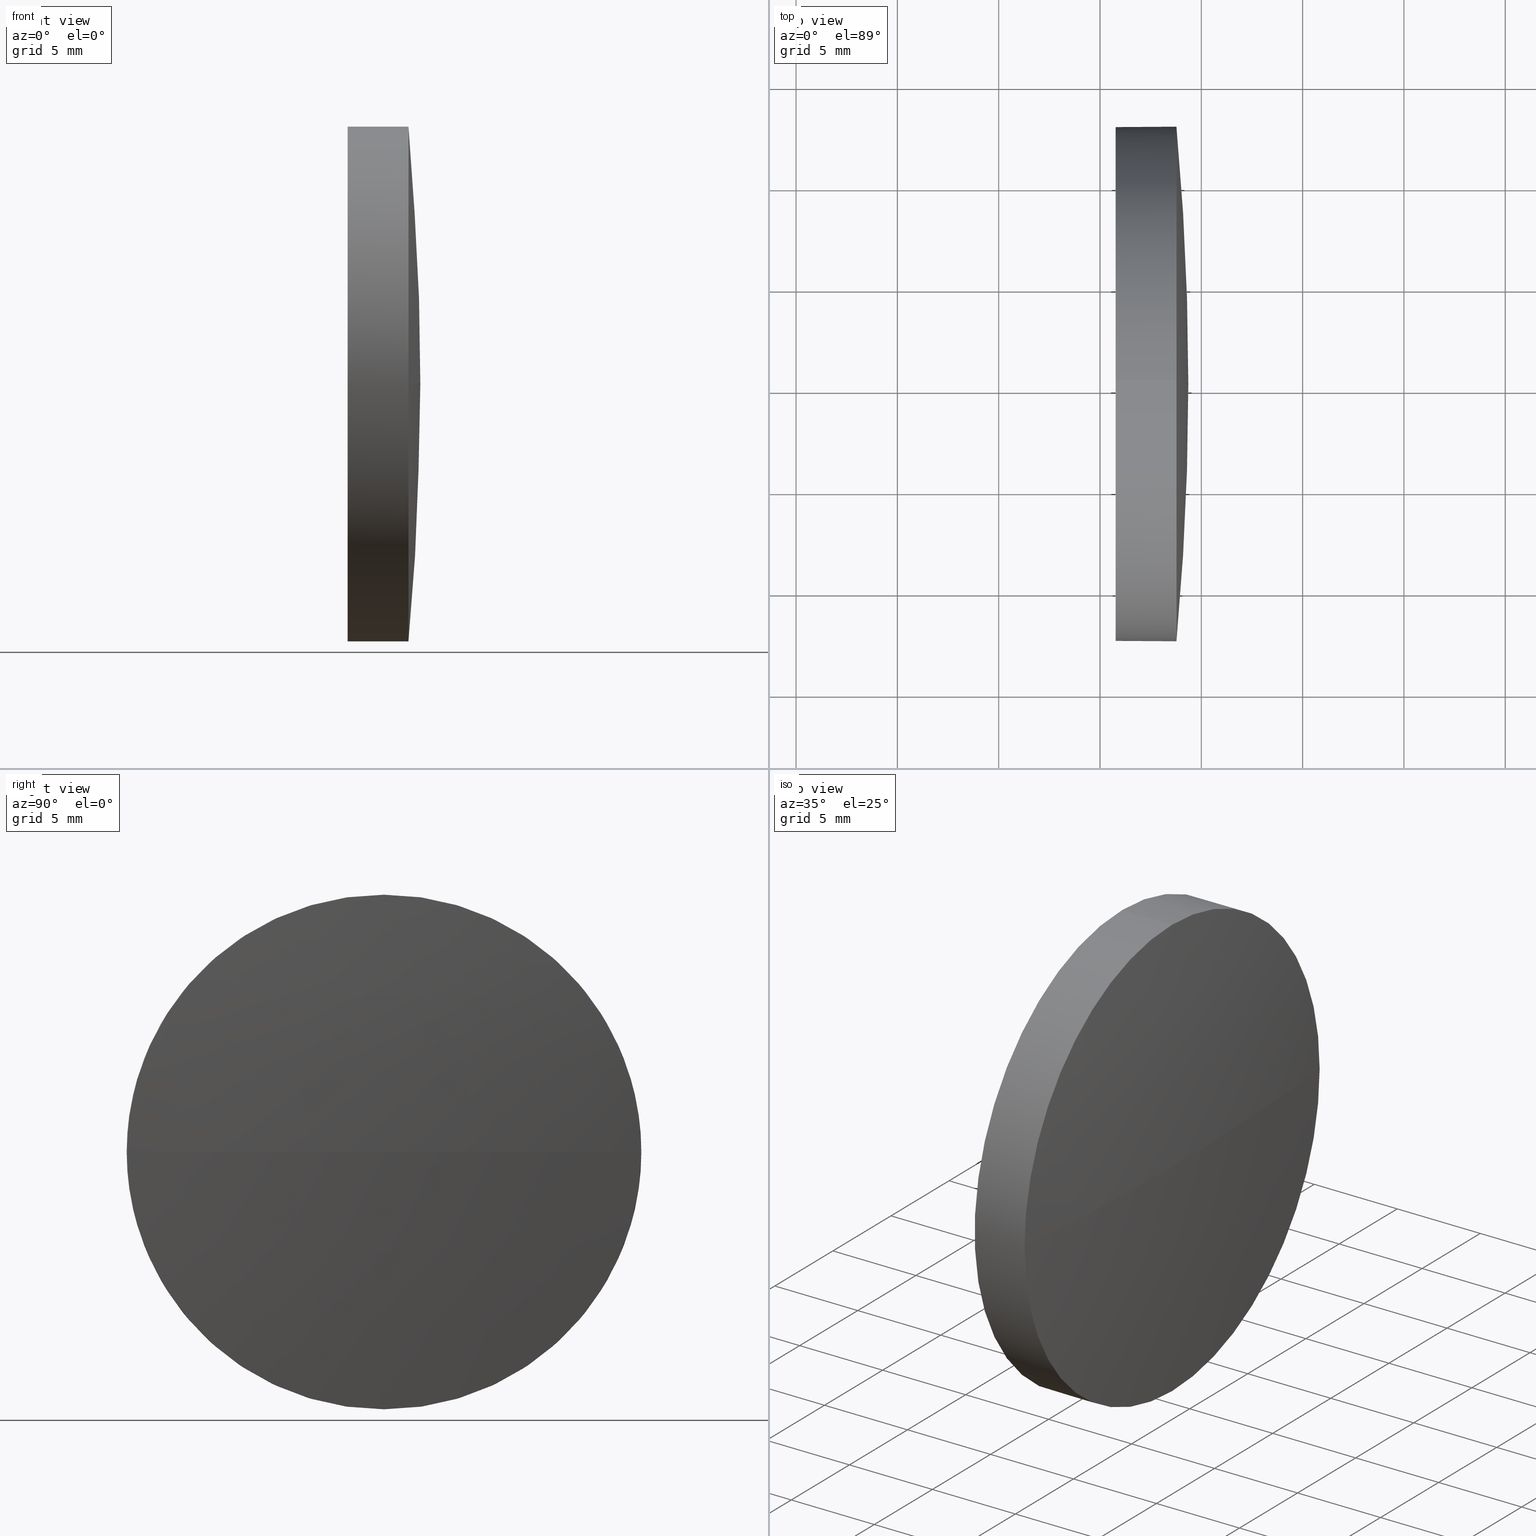
[diagram: canonical four-view strip — front | top / right | iso, engineering-drawing reading convention]
A machine part, canonical four-view strip (front | top / right | iso — engineering-drawing reading convention). The complete STEP part file that produces these views, byte-faithful:
ISO-10303-21;
HEADER;
FILE_DESCRIPTION (( 'STEP AP214' ),
    '1' );
FILE_NAME ('400023.STEP',
    '2019-08-21T06:24:18',
    ( '' ),
    ( '' ),
    'SwSTEP 2.0',
    'SolidWorks 2016',
    '' );
FILE_SCHEMA (( 'AUTOMOTIVE_DESIGN' ));
ENDSEC;

DATA;
#1 = DIRECTION ( 'NONE',  ( 0.0000000000000000000, 0.0000000000000000000, -1.000000000000000000 ) ) ;
#2 = ORIENTED_EDGE ( 'NONE', *, *, #130, .F. ) ;
#3 = EDGE_LOOP ( 'NONE', ( #129, #89 ) ) ;
#4 = AXIS2_PLACEMENT_3D ( 'NONE', #93, #135, #31 ) ;
#5 = LINE ( 'NONE', #76, #54 ) ;
#6 = FACE_OUTER_BOUND ( 'NONE', #22, .T. ) ;
#7 = EDGE_CURVE ( 'NONE', #142, #44, #5, .T. ) ;
#8 = ORIENTED_EDGE ( 'NONE', *, *, #143, .F. ) ;
#9 = ORIENTED_EDGE ( 'NONE', *, *, #24, .T. ) ;
#10 = PRESENTATION_LAYER_ASSIGNMENT (  '', '', ( #139 ) ) ;
#11 =( NAMED_UNIT ( * ) SI_UNIT ( $, .STERADIAN. ) SOLID_ANGLE_UNIT ( ) );
#12 = ORIENTED_EDGE ( 'NONE', *, *, #24, .F. ) ;
#13 = CARTESIAN_POINT ( 'NONE',  ( 118.7740777732635700, 65.23355492641219700, 0.0000000000000000000 ) ) ;
#14 = FILL_AREA_STYLE_COLOUR ( '', #154 ) ;
#15 = DIRECTION ( 'NONE',  ( 0.0000000000000000000, -1.000000000000000000, 0.0000000000000000000 ) ) ;
#16 = CIRCLE ( 'NONE', #138, 12.70000000000000300 ) ;
#17 = PRODUCT_CONTEXT ( 'NONE', #95, 'mechanical' ) ;
#18 = AXIS2_PLACEMENT_3D ( 'NONE', #151, #109, #78 ) ;
#19 =( NAMED_UNIT ( * ) SI_UNIT ( $, .STERADIAN. ) SOLID_ANGLE_UNIT ( ) );
#20 = VERTEX_POINT ( 'NONE', #163 ) ;
#21 = DIRECTION ( 'NONE',  ( -1.000000000000000000, -0.0000000000000000000, -0.0000000000000000000 ) ) ;
#22 = EDGE_LOOP ( 'NONE', ( #8, #73, #2, #126 ) ) ;
#23 = DIRECTION ( 'NONE',  ( -1.000000000000000000, -0.0000000000000000000, -0.0000000000000000000 ) ) ;
#24 = EDGE_CURVE ( 'NONE', #80, #119, #141, .T. ) ;
#25 = EDGE_CURVE ( 'NONE', #84, #80, #52, .T. ) ;
#26 = CIRCLE ( 'NONE', #173, 12.70000000000000300 ) ;
#27 = DIRECTION ( 'NONE',  ( -1.000000000000000000, -0.0000000000000000000, -0.0000000000000000000 ) ) ;
#28 = UNCERTAINTY_MEASURE_WITH_UNIT (LENGTH_MEASURE( 1.000000000000000100E-005 ), #59, 'distance_accuracy_value', 'NONE');
#29 = DIRECTION ( 'NONE',  ( 0.0000000000000000000, -1.000000000000000000, -1.224646799147353200E-016 ) ) ;
#30 = CARTESIAN_POINT ( 'NONE',  ( 118.7740777732635700, 65.23355492641219700, 0.0000000000000000000 ) ) ;
#31 = DIRECTION ( 'NONE',  ( 0.0000000000000000000, 0.0000000000000000000, 1.000000000000000000 ) ) ;
#32 = DIRECTION ( 'NONE',  ( -1.000000000000000000, -0.0000000000000000000, -0.0000000000000000000 ) ) ;
#33 =( NAMED_UNIT ( * ) PLANE_ANGLE_UNIT ( ) SI_UNIT ( $, .RADIAN. ) );
#34 = PRESENTATION_STYLE_ASSIGNMENT (( #94 ) ) ;
#35 = ORIENTED_EDGE ( 'NONE', *, *, #63, .F. ) ;
#36 = EDGE_CURVE ( 'NONE', #80, #20, #108, .T. ) ;
#37 = ORIENTED_EDGE ( 'NONE', *, *, #25, .T. ) ;
#38 = DIRECTION ( 'NONE',  ( 0.0000000000000000000, 0.0000000000000000000, 1.000000000000000000 ) ) ;
#39 = CARTESIAN_POINT ( 'NONE',  ( 115.7736064308381300, 65.23355492641219700, 12.70000000000000300 ) ) ;
#40 = CARTESIAN_POINT ( 'NONE',  ( 110.1653732284884500, 65.23355492641219700, -12.70000000000000300 ) ) ;
#41 = EDGE_LOOP ( 'NONE', ( #50, #118, #12, #117 ) ) ;
#42 = DIRECTION ( 'NONE',  ( 0.0000000000000000000, 0.0000000000000000000, 1.000000000000000000 ) ) ;
#43 = FILL_AREA_STYLE ('',( #106 ) ) ;
#44 = VERTEX_POINT ( 'NONE', #39 ) ;
#45 = DIRECTION ( 'NONE',  ( 0.0000000000000000000, 0.0000000000000000000, 1.000000000000000000 ) ) ;
#46 = FILL_AREA_STYLE ('',( #14 ) ) ;
#47 = SPHERICAL_SURFACE ( 'NONE', #158, 138.0229999999999700 ) ;
#48 = PRESENTATION_STYLE_ASSIGNMENT (( #85 ) ) ;
#49 = ORIENTED_EDGE ( 'NONE', *, *, #36, .F. ) ;
#50 = ORIENTED_EDGE ( 'NONE', *, *, #134, .F. ) ;
#51 = MECHANICAL_DESIGN_GEOMETRIC_PRESENTATION_REPRESENTATION (  '', ( #139 ), #177 ) ;
#52 = CIRCLE ( 'NONE', #77, 12.70000000000000300 ) ;
#53 = CARTESIAN_POINT ( 'NONE',  ( 118.7740777732635700, 65.23355492641219700, 0.0000000000000000000 ) ) ;
#54 = VECTOR ( 'NONE', #149, 1000.000000000000000 ) ;
#55 = CIRCLE ( 'NONE', #183, 138.0229999999999700 ) ;
#56 =( NAMED_UNIT ( * ) SI_UNIT ( $, .STERADIAN. ) SOLID_ANGLE_UNIT ( ) );
#57 = DIRECTION ( 'NONE',  ( 0.0000000000000000000, 0.0000000000000000000, 1.000000000000000000 ) ) ;
#58 = CARTESIAN_POINT ( 'NONE',  ( -18.66339356916181200, 65.23355492641235300, 0.0000000000000000000 ) ) ;
#59 =( LENGTH_UNIT ( ) NAMED_UNIT ( * ) SI_UNIT ( .MILLI., .METRE. ) );
#60 = SURFACE_SIDE_STYLE ('',( #86 ) ) ;
#61 = CLOSED_SHELL ( 'NONE', ( #120, #104, #182, #164, #90 ) ) ;
#62 = PRESENTATION_LAYER_ASSIGNMENT (  '', '', ( #116 ) ) ;
#63 = EDGE_CURVE ( 'NONE', #44, #20, #161, .T. ) ;
#64 = SURFACE_STYLE_FILL_AREA ( #43 ) ;
#65 = CARTESIAN_POINT ( 'NONE',  ( 118.7740777732635700, 65.23355492641219700, 0.0000000000000000000 ) ) ;
#66 = ORIENTED_EDGE ( 'NONE', *, *, #130, .T. ) ;
#67 = AXIS2_PLACEMENT_3D ( 'NONE', #186, #155, #140 ) ;
#68 = UNCERTAINTY_MEASURE_WITH_UNIT (LENGTH_MEASURE( 1.000000000000000100E-005 ), #82, 'distance_accuracy_value', 'NONE');
#69 =( GEOMETRIC_REPRESENTATION_CONTEXT ( 3 ) GLOBAL_UNCERTAINTY_ASSIGNED_CONTEXT ( ( #28 ) ) GLOBAL_UNIT_ASSIGNED_CONTEXT ( ( #59, #175, #19 ) ) REPRESENTATION_CONTEXT ( 'NONE', 'WORKASPACE' ) );
#70 = APPLICATION_PROTOCOL_DEFINITION ( 'draft international standard', 'automotive_design', 1998, #115 ) ;
#71 = EDGE_CURVE ( 'NONE', #20, #44, #16, .T. ) ;
#72 = PRODUCT_DEFINITION_CONTEXT ( 'detailed design', #115, 'design' ) ;
#73 = ORIENTED_EDGE ( 'NONE', *, *, #134, .T. ) ;
#74 = DIRECTION ( 'NONE',  ( -1.000000000000000000, -0.0000000000000000000, -0.0000000000000000000 ) ) ;
#75 = CIRCLE ( 'NONE', #166, 12.70000000000000300 ) ;
#76 = CARTESIAN_POINT ( 'NONE',  ( 110.1653732284884500, 65.23355492641219700, 12.70000000000000300 ) ) ;
#77 = AXIS2_PLACEMENT_3D ( 'NONE', #65, #23, #160 ) ;
#78 = DIRECTION ( 'NONE',  ( -1.000000000000000000, 0.0000000000000000000, 0.0000000000000000000 ) ) ;
#79 = DIRECTION ( 'NONE',  ( 0.0000000000000000000, 0.0000000000000000000, 1.000000000000000000 ) ) ;
#80 = VERTEX_POINT ( 'NONE', #145 ) ;
#81 = CARTESIAN_POINT ( 'NONE',  ( -18.66339356916181200, 65.23355492641235300, 0.0000000000000000000 ) ) ;
#82 =( LENGTH_UNIT ( ) NAMED_UNIT ( * ) SI_UNIT ( .MILLI., .METRE. ) );
#83 = DIRECTION ( 'NONE',  ( 0.0000000000000000000, -1.000000000000000000, 0.0000000000000000000 ) ) ;
#84 = VERTEX_POINT ( 'NONE', #148 ) ;
#85 = SURFACE_STYLE_USAGE ( .BOTH. , #60 ) ;
#86 = SURFACE_STYLE_FILL_AREA ( #46 ) ;
#87 = FACE_OUTER_BOUND ( 'NONE', #3, .T. ) ;
#88 = PRODUCT_DEFINITION_FORMATION_WITH_SPECIFIED_SOURCE ( '�κ�', '', #100, .NOT_KNOWN. ) ;
#89 = ORIENTED_EDGE ( 'NONE', *, *, #71, .T. ) ;
#90 = ADVANCED_FACE ( 'NONE', ( #87 ), #105, .F. ) ;
#91 = PRODUCT_RELATED_PRODUCT_CATEGORY ( 'part', '', ( #100 ) ) ;
#92 = SHAPE_DEFINITION_REPRESENTATION ( #184, #128 ) ;
#93 = CARTESIAN_POINT ( 'NONE',  ( 110.1653732284884500, 65.23355492641219700, 0.0000000000000000000 ) ) ;
#94 = SURFACE_STYLE_USAGE ( .BOTH. , #170 ) ;
#95 = APPLICATION_CONTEXT ( 'automotive_design' ) ;
#96 = CARTESIAN_POINT ( 'NONE',  ( 119.3596064308381700, 65.23355492641233900, 0.0000000000000000000 ) ) ;
#97 = AXIS2_PLACEMENT_3D ( 'NONE', #81, #45, #15 ) ;
#98 = FACE_OUTER_BOUND ( 'NONE', #41, .T. ) ;
#99 = EDGE_CURVE ( 'NONE', #119, #142, #75, .T. ) ;
#100 = PRODUCT ( '400023', '400023', '', ( #17 ) ) ;
#101 = ORIENTED_EDGE ( 'NONE', *, *, #7, .F. ) ;
#102 = PRODUCT_DEFINITION ( 'δ֪', '', #88, #72 ) ;
#103 = VECTOR ( 'NONE', #74, 1000.000000000000000 ) ;
#104 = ADVANCED_FACE ( 'NONE', ( #6 ), #47, .T. ) ;
#105 = PLANE ( 'NONE',  #178 ) ;
#106 = FILL_AREA_STYLE_COLOUR ( '', #127 ) ;
#107 = CARTESIAN_POINT ( 'NONE',  ( 118.7740777732635700, 65.23355492641219700, 12.70000000000000300 ) ) ;
#108 = LINE ( 'NONE', #40, #103 ) ;
#109 = DIRECTION ( 'NONE',  ( 0.0000000000000000000, 0.0000000000000000000, -1.000000000000000000 ) ) ;
#110 = DIRECTION ( 'NONE',  ( -1.000000000000000000, -0.0000000000000000000, -0.0000000000000000000 ) ) ;
#111 = DIRECTION ( 'NONE',  ( -1.000000000000000000, -0.0000000000000000000, -0.0000000000000000000 ) ) ;
#112 = AXIS2_PLACEMENT_3D ( 'NONE', #53, #180, #38 ) ;
#113 = EDGE_LOOP ( 'NONE', ( #37, #171, #35, #101, #66 ) ) ;
#114 = SPHERICAL_SURFACE ( 'NONE', #97, 138.0229999999999700 ) ;
#115 = APPLICATION_CONTEXT ( 'automotive_design' ) ;
#116 = STYLED_ITEM ( 'NONE', ( #48 ), #128 ) ;
#117 = ORIENTED_EDGE ( 'NONE', *, *, #25, .F. ) ;
#118 = ORIENTED_EDGE ( 'NONE', *, *, #143, .T. ) ;
#119 = VERTEX_POINT ( 'NONE', #124 ) ;
#120 = ADVANCED_FACE ( 'NONE', ( #157 ), #174, .T. ) ;
#121 = DIRECTION ( 'NONE',  ( 0.0000000000000000000, 0.0000000000000000000, 1.000000000000000000 ) ) ;
#122 = MECHANICAL_DESIGN_GEOMETRIC_PRESENTATION_REPRESENTATION (  '', ( #116 ), #69 ) ;
#123 =( LENGTH_UNIT ( ) NAMED_UNIT ( * ) SI_UNIT ( .MILLI., .METRE. ) );
#124 = CARTESIAN_POINT ( 'NONE',  ( 118.7740777732635700, 52.53355492641231500, 0.0000000000000000000 ) ) ;
#125 = APPLICATION_PROTOCOL_DEFINITION ( 'draft international standard', 'automotive_design', 1998, #95 ) ;
#126 = ORIENTED_EDGE ( 'NONE', *, *, #99, .F. ) ;
#127 = COLOUR_RGB ( '',1.000000000000000000, 1.000000000000000000, 1.000000000000000000 ) ;
#128 = ADVANCED_BREP_SHAPE_REPRESENTATION ( '400023', ( #179, #67 ), #162 ) ;
#129 = ORIENTED_EDGE ( 'NONE', *, *, #63, .T. ) ;
#130 = EDGE_CURVE ( 'NONE', #142, #84, #26, .T. ) ;
#131 = FACE_OUTER_BOUND ( 'NONE', #153, .T. ) ;
#132 = DIRECTION ( 'NONE',  ( 0.0000000000000000000, 0.0000000000000000000, 1.000000000000000000 ) ) ;
#133 = CIRCLE ( 'NONE', #18, 138.0229999999999700 ) ;
#134 = EDGE_CURVE ( 'NONE', #150, #84, #55, .T. ) ;
#135 = DIRECTION ( 'NONE',  ( -1.000000000000000000, -0.0000000000000000000, -0.0000000000000000000 ) ) ;
#136 = DIRECTION ( 'NONE',  ( 1.000000000000000000, 0.0000000000000000000, 0.0000000000000000000 ) ) ;
#137 = CARTESIAN_POINT ( 'NONE',  ( -18.66339356916181200, 65.23355492641235300, 0.0000000000000000000 ) ) ;
#138 = AXIS2_PLACEMENT_3D ( 'NONE', #181, #27, #121 ) ;
#139 = STYLED_ITEM ( 'NONE', ( #34 ), #179 ) ;
#140 = DIRECTION ( 'NONE',  ( 1.000000000000000000, 0.0000000000000000000, 0.0000000000000000000 ) ) ;
#141 = CIRCLE ( 'NONE', #112, 12.70000000000000300 ) ;
#142 = VERTEX_POINT ( 'NONE', #107 ) ;
#143 = EDGE_CURVE ( 'NONE', #150, #119, #133, .T. ) ;
#144 = ORIENTED_EDGE ( 'NONE', *, *, #71, .F. ) ;
#145 = CARTESIAN_POINT ( 'NONE',  ( 118.7740777732635700, 65.23355492641219700, -12.70000000000000300 ) ) ;
#146 = AXIS2_PLACEMENT_3D ( 'NONE', #168, #110, #185 ) ;
#147 = ORIENTED_EDGE ( 'NONE', *, *, #7, .T. ) ;
#148 = CARTESIAN_POINT ( 'NONE',  ( 118.7740777732635700, 77.93355492641224200, 1.555301434917124400E-015 ) ) ;
#149 = DIRECTION ( 'NONE',  ( -1.000000000000000000, -0.0000000000000000000, -0.0000000000000000000 ) ) ;
#150 = VERTEX_POINT ( 'NONE', #96 ) ;
#151 = CARTESIAN_POINT ( 'NONE',  ( -18.66339356916181200, 65.23355492641235300, 0.0000000000000000000 ) ) ;
#152 = DIRECTION ( 'NONE',  ( 0.0000000000000000000, -1.224646799147353200E-016, 1.000000000000000000 ) ) ;
#153 = EDGE_LOOP ( 'NONE', ( #49, #9, #176, #147, #144 ) ) ;
#154 = COLOUR_RGB ( '',1.000000000000000000, 1.000000000000000000, 1.000000000000000000 ) ;
#155 = DIRECTION ( 'NONE',  ( 0.0000000000000000000, 0.0000000000000000000, 1.000000000000000000 ) ) ;
#156 = AXIS2_PLACEMENT_3D ( 'NONE', #165, #21, #132 ) ;
#157 = FACE_OUTER_BOUND ( 'NONE', #113, .T. ) ;
#158 = AXIS2_PLACEMENT_3D ( 'NONE', #137, #79, #83 ) ;
#159 = UNCERTAINTY_MEASURE_WITH_UNIT (LENGTH_MEASURE( 1.000000000000000100E-005 ), #123, 'distance_accuracy_value', 'NONE');
#160 = DIRECTION ( 'NONE',  ( 0.0000000000000000000, 0.0000000000000000000, 1.000000000000000000 ) ) ;
#161 = CIRCLE ( 'NONE', #156, 12.70000000000000300 ) ;
#162 =( GEOMETRIC_REPRESENTATION_CONTEXT ( 3 ) GLOBAL_UNCERTAINTY_ASSIGNED_CONTEXT ( ( #68 ) ) GLOBAL_UNIT_ASSIGNED_CONTEXT ( ( #82, #172, #11 ) ) REPRESENTATION_CONTEXT ( 'NONE', 'WORKASPACE' ) );
#163 = CARTESIAN_POINT ( 'NONE',  ( 115.7736064308381300, 65.23355492641219700, -12.70000000000000300 ) ) ;
#164 = ADVANCED_FACE ( 'NONE', ( #131 ), #167, .T. ) ;
#165 = CARTESIAN_POINT ( 'NONE',  ( 115.7736064308381300, 65.23355492641219700, 0.0000000000000000000 ) ) ;
#166 = AXIS2_PLACEMENT_3D ( 'NONE', #13, #111, #57 ) ;
#167 = CYLINDRICAL_SURFACE ( 'NONE', #4, 12.70000000000000300 ) ;
#168 = CARTESIAN_POINT ( 'NONE',  ( 110.1653732284884500, 65.23355492641219700, 0.0000000000000000000 ) ) ;
#169 = CARTESIAN_POINT ( 'NONE',  ( 115.7736064308381300, 65.23355492641219700, 0.0000000000000000000 ) ) ;
#170 = SURFACE_SIDE_STYLE ('',( #64 ) ) ;
#171 = ORIENTED_EDGE ( 'NONE', *, *, #36, .T. ) ;
#172 =( NAMED_UNIT ( * ) PLANE_ANGLE_UNIT ( ) SI_UNIT ( $, .RADIAN. ) );
#173 = AXIS2_PLACEMENT_3D ( 'NONE', #30, #32, #42 ) ;
#174 = CYLINDRICAL_SURFACE ( 'NONE', #146, 12.70000000000000300 ) ;
#175 =( NAMED_UNIT ( * ) PLANE_ANGLE_UNIT ( ) SI_UNIT ( $, .RADIAN. ) );
#176 = ORIENTED_EDGE ( 'NONE', *, *, #99, .T. ) ;
#177 =( GEOMETRIC_REPRESENTATION_CONTEXT ( 3 ) GLOBAL_UNCERTAINTY_ASSIGNED_CONTEXT ( ( #159 ) ) GLOBAL_UNIT_ASSIGNED_CONTEXT ( ( #123, #33, #56 ) ) REPRESENTATION_CONTEXT ( 'NONE', 'WORKASPACE' ) );
#178 = AXIS2_PLACEMENT_3D ( 'NONE', #169, #136, #1 ) ;
#179 = MANIFOLD_SOLID_BREP ( '��ת1', #61 ) ;
#180 = DIRECTION ( 'NONE',  ( -1.000000000000000000, -0.0000000000000000000, -0.0000000000000000000 ) ) ;
#181 = CARTESIAN_POINT ( 'NONE',  ( 115.7736064308381300, 65.23355492641219700, 0.0000000000000000000 ) ) ;
#182 = ADVANCED_FACE ( 'NONE', ( #98 ), #114, .T. ) ;
#183 = AXIS2_PLACEMENT_3D ( 'NONE', #58, #152, #29 ) ;
#184 = PRODUCT_DEFINITION_SHAPE ( 'NONE', 'NONE',  #102 ) ;
#185 = DIRECTION ( 'NONE',  ( 0.0000000000000000000, 0.0000000000000000000, 1.000000000000000000 ) ) ;
#186 = CARTESIAN_POINT ( 'NONE',  ( 0.0000000000000000000, 0.0000000000000000000, 0.0000000000000000000 ) ) ;
ENDSEC;
END-ISO-10303-21;
